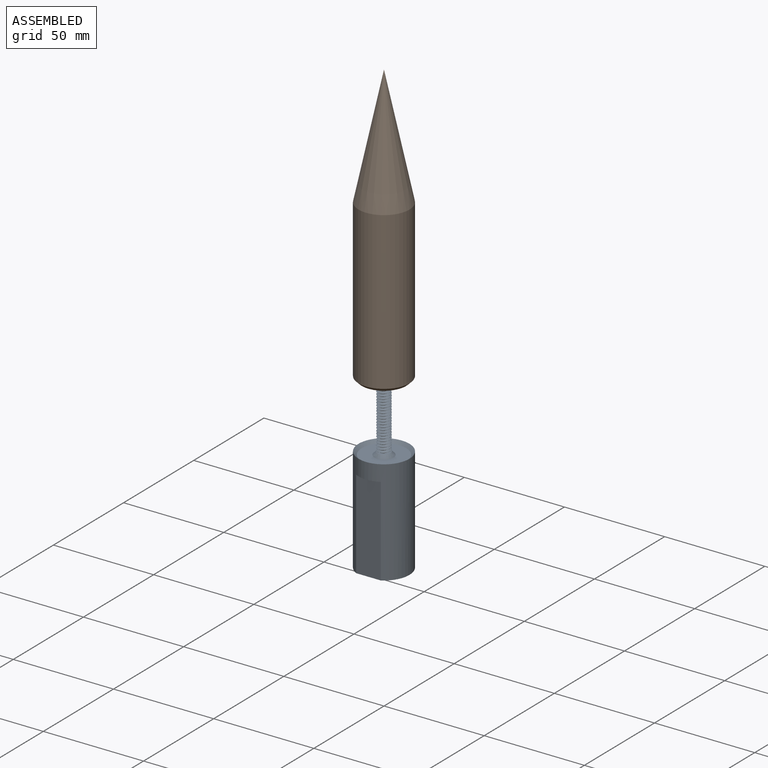
[diagram: assembled view]
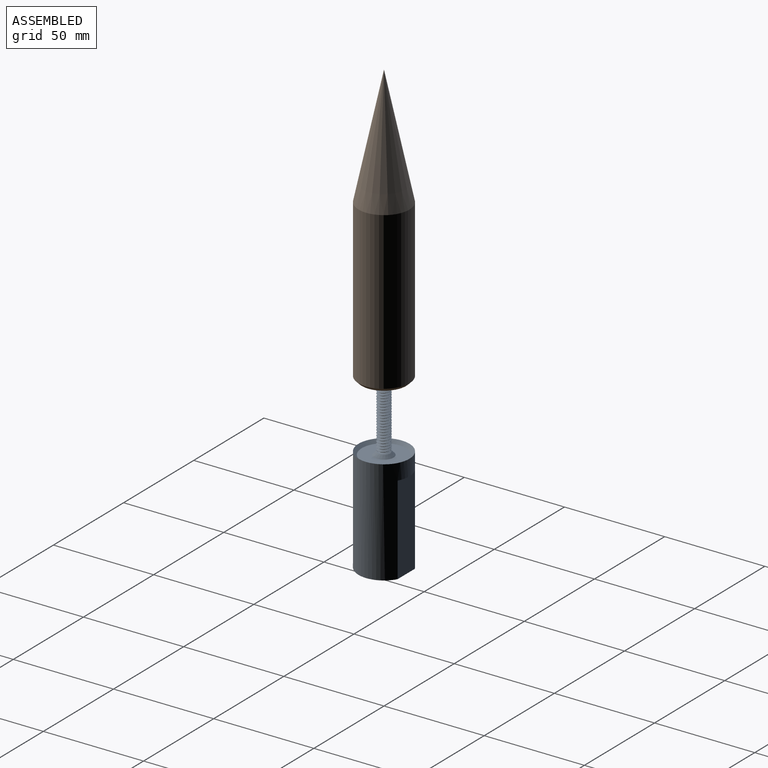
[diagram: assembled view, second angle]
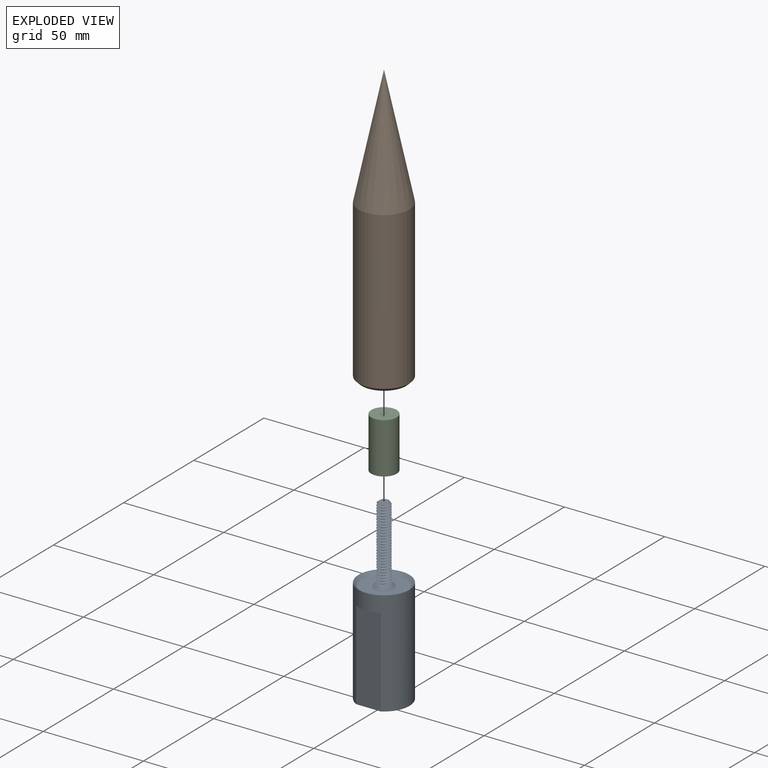
[diagram: exploded view]
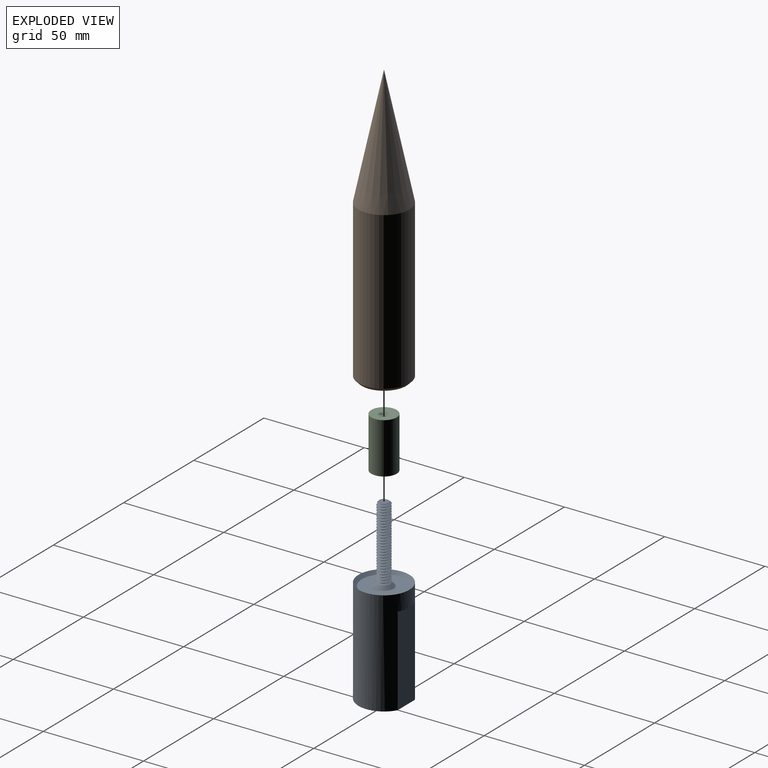
[diagram: exploded view, second angle]
ASSEMBLY  parts=3 mates=2
PART A: 15 faces, bbox 26.2x26.2x90.5 mm
  f0: cylinder r=12.7mm len=52.39mm, axis (0,0,-1), area 3039.2mm2, adj f1,f3,f11,f12,f13,f14
  f1: plane 25.4x22.23mm, normal (0,0,-1), area 480.3mm2, adj f0,f12,f14
  f2: plane 22.23x22.23mm, normal (0,0,1), area 316.7mm2, adj f3,f10
  f3: cone r=11.11mm half-angle=45deg, axis (0,0,1), area 168mm2, adj f0,f2
  f4: plane 7.18x7.18mm, normal (0,0,1), area 9mm2, adj f7,f8,f10
  f5: plane 4.85x4.66mm, normal (0,0,1), area 17.4mm2, adj f6,f7,f8
  f6: cone r=2.38mm half-angle=45deg, axis (0,0,-1), area 7.5mm2, adj f5,f7,f8,f9
  f7: bspline ~37.44x7.33mm, area 578.3mm2, adj f4,f5,f6,f8,f9
  f8: bspline ~38.07x7.33mm, area 580.7mm2, adj f4,f5,f6,f7,f9
  f9: cylinder r=3.17mm len=35.72mm, axis (0,0,-1), area 38mm2, adj f6,f7,f8,f10
  f10: cone r=4.76mm half-angle=45deg, axis (0,0,-1), area 56mm2, adj f2,f4,f9
  f11: plane 12.3x1.59mm, normal (0,0,-1), area 13.2mm2, adj f0,f12
  f12: plane 44.45x12.3mm, normal (0,1,0), area 546.6mm2, adj f0,f1,f11
  f13: plane 12.3x1.59mm, normal (0,0,-1), area 13.2mm2, adj f0,f14
  f14: plane 44.45x12.3mm, normal (0,-1,0), area 546.6mm2, adj f0,f1,f13
PART B: 11 faces, bbox 26.2x26.2x140.5 mm
  f0: cylinder r=12.7mm len=78.36mm, axis (0,0,-1), area 6253.1mm2, adj f1,f2
  f1: cone r=12.7mm half-angle=12deg, axis (0,0,-1), area 2437.1mm2, adj f0
  f2: cone r=11.11mm half-angle=45deg, axis (0,0,1), area 168mm2, adj f0,f3
  f3: plane 22.23x22.23mm, normal (0,0,-1), area 261.3mm2, adj f2,f4
  f4: cylinder r=6.35mm len=25.4mm, axis (0,0,-1), area 1013.4mm2, adj f3,f5
  f5: plane 13.55x13.55mm, normal (0,0,-1), area 104mm2, adj f4,f8,f9,f10
  f6: cone r=2.38mm half-angle=45deg, axis (0,0,-1), area 7.5mm2, adj f7,f8,f9,f10
  f7: plane 4.85x4.66mm, normal (0,0,-1), area 17.4mm2, adj f6,f8,f9
  f8: bspline ~13.52x7.33mm, area 197.9mm2, adj f5,f6,f7,f9,f10
  f9: bspline ~14.16x7.33mm, area 197.6mm2, adj f5,f6,f7,f8,f10
  f10: cylinder r=3.17mm len=11.91mm, axis (0,0,-1), area 25.6mm2, adj f5,f6,f8,f9
PART C: 8 faces, bbox 13.5x13.5x27 mm
  f0: plane 12.7x12.7mm, normal (0,0,-1), area 55.4mm2, adj f1,f6
  f1: cone r=4.76mm half-angle=45deg, axis (0,0,-1), area 56mm2, adj f0,f2,f5
  f2: cylinder r=3.17mm len=23.81mm, axis (0,0,-1), area 28.3mm2, adj f1,f3,f4,f7
  f3: bspline ~25.37x7.33mm, area 378.8mm2, adj f2,f4,f5,f7
  f4: bspline ~25.16x7.33mm, area 380.5mm2, adj f2,f3,f5,f7
  f5: plane 7.18x7.18mm, normal (0,0,-1), area 9mm2, adj f1,f3,f4
  f6: cylinder r=6.35mm len=25.4mm, axis (0,0,-1), area 1013.4mm2, adj f0,f7
  f7: plane 13.55x13.55mm, normal (0,0,1), area 104mm2, adj f2,f3,f4,f6
PLACE A at identity fixed
PLACE B t=(0,0,34.04)mm
PLACE C t=(0,0,34.04)mm
MATE fastened C.f6 <-> B.f4  axis (0,0,-1) through (0,0,84.84)mm
MATE slider B.f2 <-> A.f0  axis (0,0,-1) through (0,0,84.84)mm
